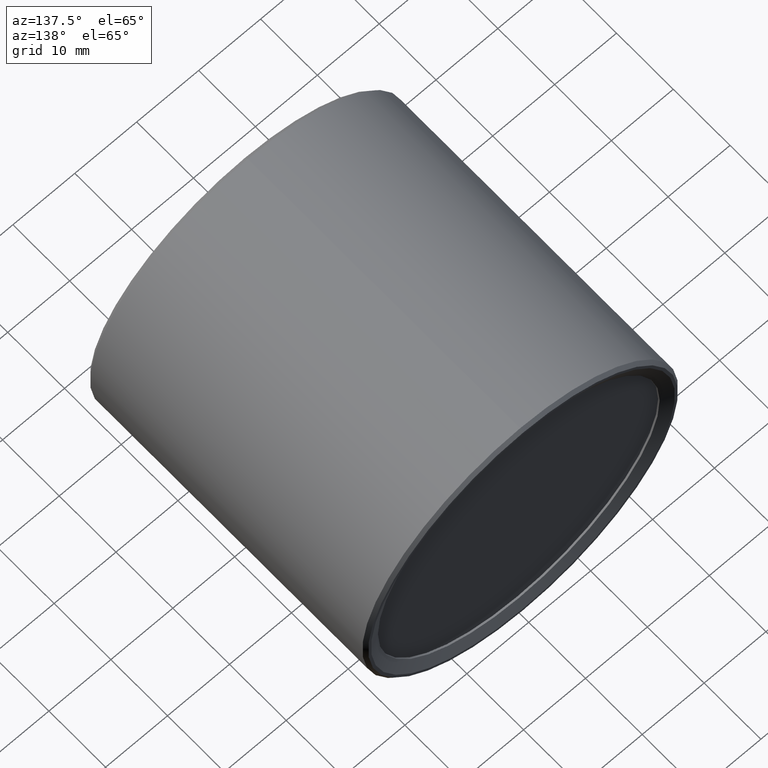
[diagram: clean part render]
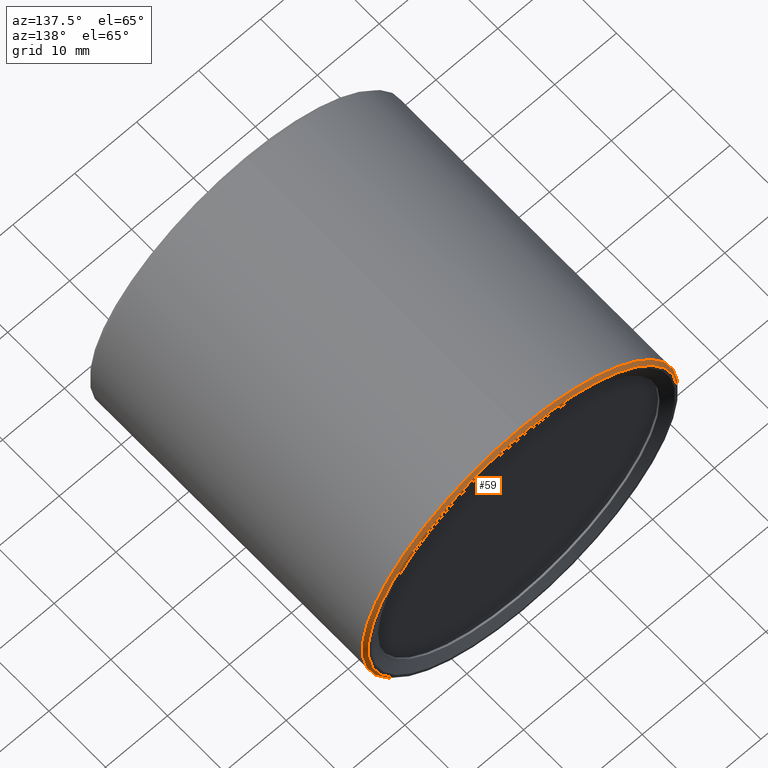
[diagram: same view with one face highlighted and labeled with its STEP entity id]
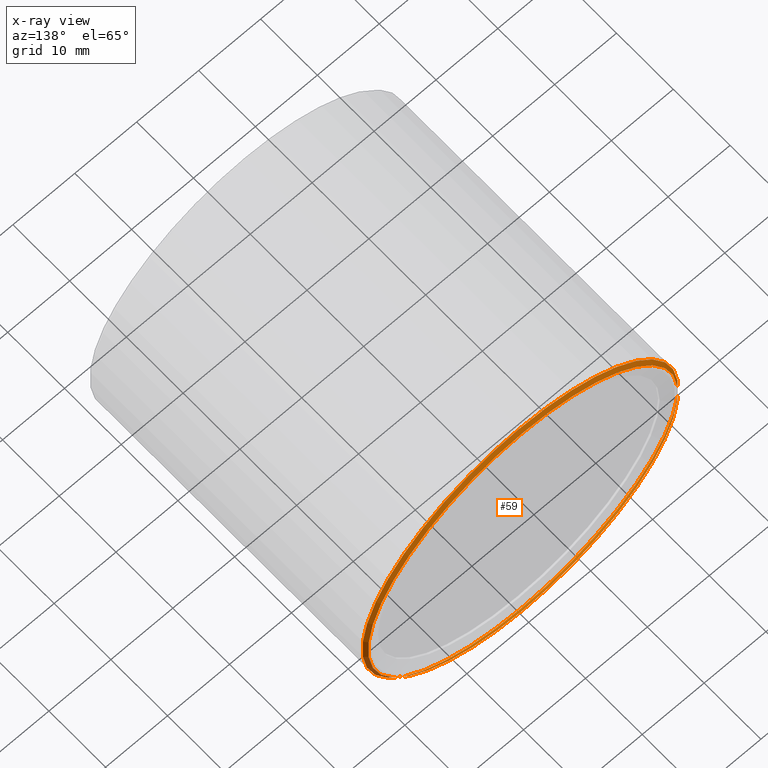
[diagram: x-ray of the same camera — body ghosted, the highlighted face saturated]
A machine part, auxiliary view. The second image highlights one B-rep face of the part: STEP entity #59.
The next image is the same camera in x-ray: the body ghosted, the highlighted face saturated — about 0% of this face is hidden behind the body in this view.
In plain terms, the highlighted conical surface has half-angle 45 deg.
Its self-contained STEP definition (entity closure, byte-faithful):
#9 = ORIENTED_EDGE ( 'NONE', *, *, #142, .F. ) ;
#19 = AXIS2_PLACEMENT_3D ( 'NONE', #206, #50, #24 ) ;
#24 = DIRECTION ( 'NONE',  ( 0.000000000000000000, 0.000000000000000000, 1.000000000000000000 ) ) ;
#46 = FACE_OUTER_BOUND ( 'NONE', #334, .T. ) ;
#50 = DIRECTION ( 'NONE',  ( 0.000000000000000000, 1.000000000000000000, 0.000000000000000000 ) ) ;
#59 = ADVANCED_FACE ( 'NONE', ( #46, #335 ), #125, .T. ) ;
#80 = CARTESIAN_POINT ( 'NONE',  ( 0.000000000000000000, 48.49999999999999289, 0.000000000000000000 ) ) ;
#84 = CARTESIAN_POINT ( 'NONE',  ( 0.000000000000000000, 48.49999999999999289, 25.50000000000000000 ) ) ;
#91 = AXIS2_PLACEMENT_3D ( 'NONE', #101, #281, #141 ) ;
#96 = AXIS2_PLACEMENT_3D ( 'NONE', #80, #105, #205 ) ;
#99 = ORIENTED_EDGE ( 'NONE', *, *, #353, .F. ) ;
#101 = CARTESIAN_POINT ( 'NONE',  ( 0.000000000000000000, 49.00000000000000000, 0.000000000000000000 ) ) ;
#105 = DIRECTION ( 'NONE',  ( 0.000000000000000000, -1.000000000000000000, 0.000000000000000000 ) ) ;
#110 = CARTESIAN_POINT ( 'NONE',  ( 0.000000000000000000, 49.00000000000000000, 25.00000000000000000 ) ) ;
#113 = VERTEX_POINT ( 'NONE', #84 ) ;
#125 = CONICAL_SURFACE ( 'NONE', #91, 25.00000000000000000, 0.7853981633974380649 ) ;
#141 = DIRECTION ( 'NONE',  ( 0.000000000000000000, 0.000000000000000000, -1.000000000000000000 ) ) ;
#142 = EDGE_CURVE ( 'NONE', #235, #235, #299, .T. ) ;
#205 = DIRECTION ( 'NONE',  ( 0.000000000000000000, 0.000000000000000000, 1.000000000000000000 ) ) ;
#206 = CARTESIAN_POINT ( 'NONE',  ( 0.000000000000000000, 49.00000000000000000, 0.000000000000000000 ) ) ;
#235 = VERTEX_POINT ( 'NONE', #110 ) ;
#271 = EDGE_LOOP ( 'NONE', ( #9 ) ) ;
#281 = DIRECTION ( 'NONE',  ( 0.000000000000000000, -1.000000000000000000, 0.000000000000000000 ) ) ;
#299 = CIRCLE ( 'NONE', #19, 25.00000000000000000 ) ;
#334 = EDGE_LOOP ( 'NONE', ( #99 ) ) ;
#335 = FACE_BOUND ( 'NONE', #271, .T. ) ;
#352 = CIRCLE ( 'NONE', #96, 25.50000000000000000 ) ;
#353 = EDGE_CURVE ( 'NONE', #113, #113, #352, .T. ) ;